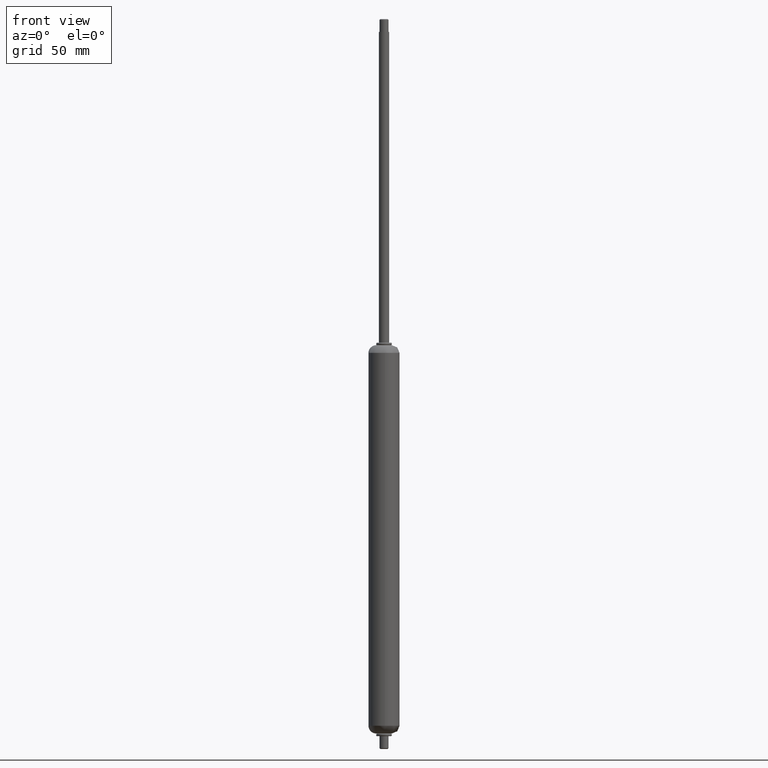
[diagram: clean part render]
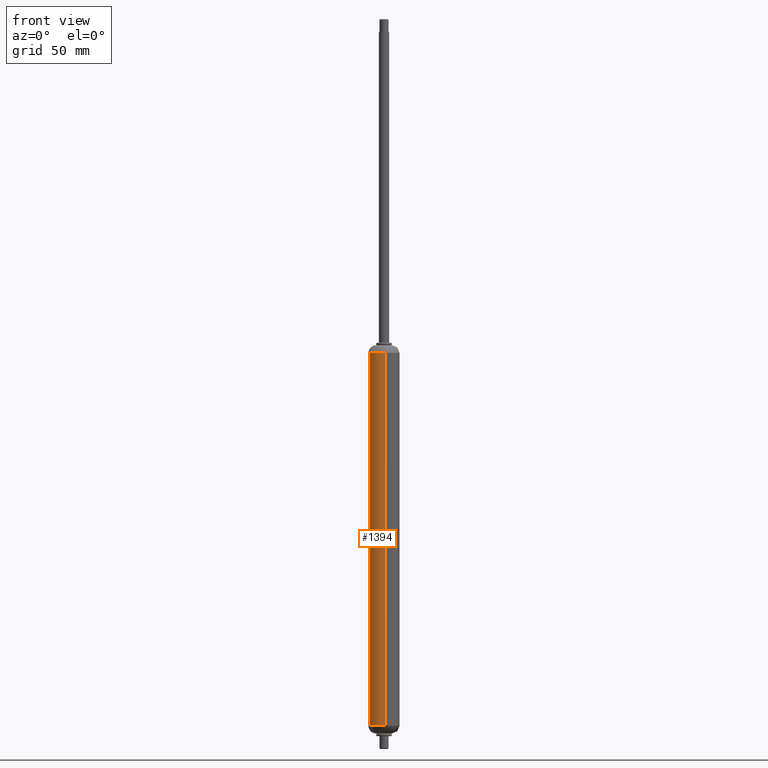
[diagram: same view with one face highlighted and labeled with its STEP entity id]
A machine part, front view. The second image highlights one B-rep face of the part: STEP entity #1394.
In plain terms, the highlighted face is a freeform B-spline surface patch.
Its self-contained STEP definition (entity closure, byte-faithful):
#1205=CARTESIAN_POINT('',(-5.616861472649271,-2.109707846375408,-2.999999999999995));
#1206=VERTEX_POINT('',#1205);
#1254=CARTESIAN_POINT('',(0.366291238602621,-5.988808790445319,-2.999999999999995));
#1255=VERTEX_POINT('',#1254);
#1269=CARTESIAN_POINT('',(0.366291238602621,-5.988808790445320,-147.000003306941690));
#1270=VERTEX_POINT('',#1269);
#1271=CARTESIAN_POINT('',(0.366291238602621,-5.988808790445319,-2.999999999999995));
#1272=CARTESIAN_POINT('',(0.366291238602621,-5.988808790445320,-147.000003306941690));
#1273=QUASI_UNIFORM_CURVE('',1,(#1271,#1272),.UNSPECIFIED.,.F.,.U.);
#1274=EDGE_CURVE('',#1255,#1270,#1273,.T.);
#1323=CARTESIAN_POINT('',(-5.616861472648955,-2.109707846375288,-147.000002570894910));
#1324=VERTEX_POINT('',#1323);
#1338=CARTESIAN_POINT('',(-5.616861472649271,-2.109707846375408,-2.999999999999995));
#1339=CARTESIAN_POINT('',(-5.616861472648955,-2.109707846375288,-147.000002570894910));
#1340=QUASI_UNIFORM_CURVE('',1,(#1338,#1339),.UNSPECIFIED.,.F.,.U.);
#1341=EDGE_CURVE('',#1206,#1324,#1340,.T.);
#1346=CARTESIAN_POINT('',(0.366291237209304,-5.988808790530532,0.600000100000007));
#1347=CARTESIAN_POINT('',(-4.058217490817736,-6.259423337215350,0.600000100000007));
#1348=CARTESIAN_POINT('',(-5.616861472659112,-2.109707846349194,0.600000100000007));
#1349=CARTESIAN_POINT('',(0.366291237209304,-5.988808790530532,-150.690004102500100));
#1350=CARTESIAN_POINT('',(-4.058217490817736,-6.259423337215350,-150.690004102500070));
#1351=CARTESIAN_POINT('',(-5.616861472659112,-2.109707846349194,-150.690004102500150));
#1359=(BOUNDED_SURFACE()B_SPLINE_SURFACE(2,1,((#1346,#1349),(#1347,#1350),(#1348,#1351)),.UNSPECIFIED.,.F.,.F.,.U.)B_SPLINE_SURFACE_WITH_KNOTS((3,3),(2,2),(0.0,7.898692343318997),(0.0,151.290004202500110),.UNSPECIFIED.)GEOMETRIC_REPRESENTATION_ITEM()RATIONAL_B_SPLINE_SURFACE(((1.0,1.0),(0.765685424949238,0.765685424949238),(0.906274169979695,0.906274169979695)))REPRESENTATION_ITEM('')SURFACE());
#1360=CARTESIAN_POINT('',(0.366291238602621,-5.988808790445319,-2.999999999999994));
#1361=CARTESIAN_POINT('',(0.183316581188941,-5.999999999999341,-3.0));
#1362=CARTESIAN_POINT('',(2.060574E-013,-5.999999999999340,-3.0));
#1363=CARTESIAN_POINT('',(-4.155657574124408,-5.999999999999340,-3.000000000000001));
#1364=CARTESIAN_POINT('',(-5.616861472649271,-2.109707846375408,-2.999999999999994));
#1372=(BOUNDED_CURVE()B_SPLINE_CURVE(2,(#1360,#1361,#1362,#1363,#1364),.UNSPECIFIED.,.F.,.U.)B_SPLINE_CURVE_WITH_KNOTS((3,2,3),(0.739332962161681,0.750000000000000,0.940284170897435),.UNSPECIFIED.)CURVE()GEOMETRIC_REPRESENTATION_ITEM()RATIONAL_B_SPLINE_CURVE((0.976072041501131,0.987502787809320,1.0,0.777068226786405,0.893499554633961))REPRESENTATION_ITEM(''));
#1373=EDGE_CURVE('',#1255,#1206,#1372,.T.);
#1374=ORIENTED_EDGE('',*,*,#1373,.T.);
#1375=ORIENTED_EDGE('',*,*,#1341,.T.);
#1376=CARTESIAN_POINT('',(0.366291238602621,-5.988808790445320,-147.000003306941690));
#1377=CARTESIAN_POINT('',(0.183316581189121,-5.999999999999321,-147.000003284432180));
#1378=CARTESIAN_POINT('',(5.679901E-013,-5.999999999999321,-147.000003261880610));
#1379=CARTESIAN_POINT('',(-4.155657574123993,-5.999999999999321,-147.000002750652070));
#1380=CARTESIAN_POINT('',(-5.616861472648955,-2.109707846375288,-147.000002570894940));
#1388=(BOUNDED_CURVE()B_SPLINE_CURVE(2,(#1376,#1377,#1378,#1379,#1380),.UNSPECIFIED.,.F.,.U.)B_SPLINE_CURVE_WITH_KNOTS((3,2,3),(0.739332962161691,0.750000000000000,0.940284170897442),.UNSPECIFIED.)CURVE()GEOMETRIC_REPRESENTATION_ITEM()RATIONAL_B_SPLINE_CURVE((0.976072041501152,0.987502787809331,1.0,0.777068226786396,0.893499554633970))REPRESENTATION_ITEM(''));
#1389=EDGE_CURVE('',#1270,#1324,#1388,.T.);
#1390=ORIENTED_EDGE('',*,*,#1389,.F.);
#1391=ORIENTED_EDGE('',*,*,#1274,.F.);
#1392=EDGE_LOOP('',(#1374,#1375,#1390,#1391));
#1393=FACE_OUTER_BOUND('',#1392,.T.);
#1394=ADVANCED_FACE('',(#1393),#1359,.T.);